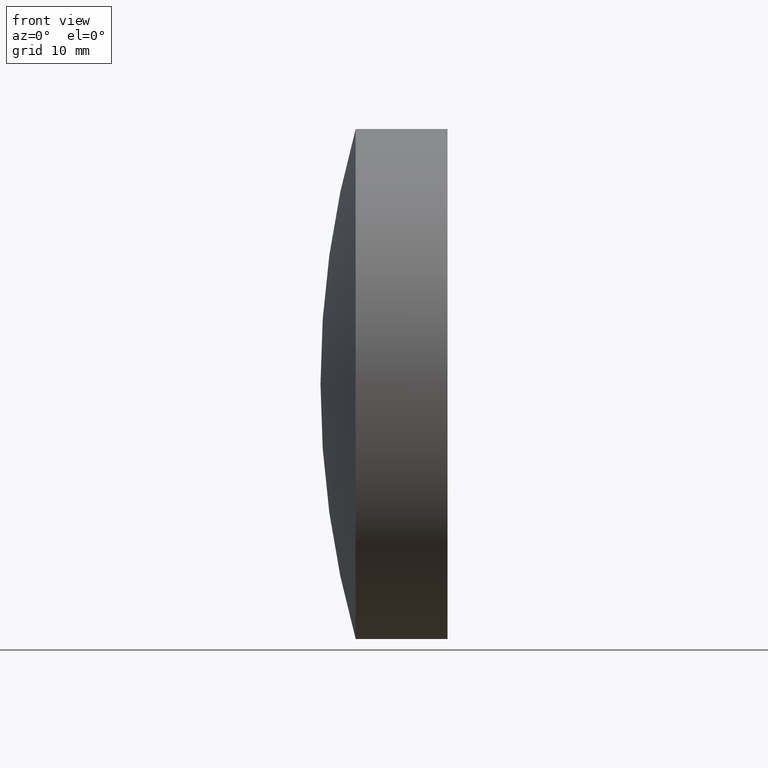
[diagram: clean part render]
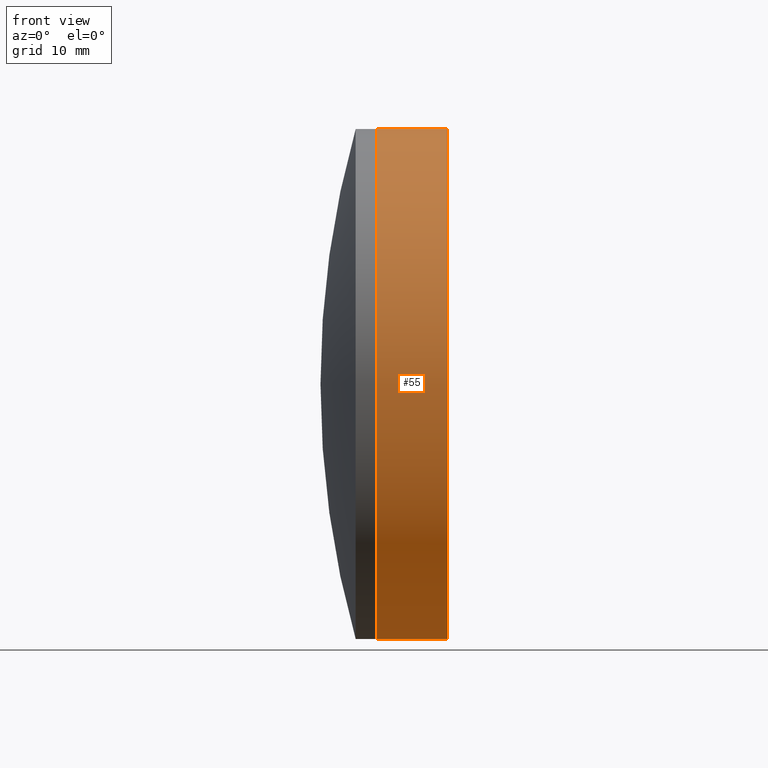
[diagram: same view with one face highlighted and labeled with its STEP entity id]
A machine part, front view. The second image highlights one B-rep face of the part: STEP entity #55.
In plain terms, the highlighted cylindrical surface (partial cylindrical patch) has radius 25.4 mm, axis along (-1, -0, -0).
Its self-contained STEP definition (entity closure, byte-faithful):
#2 = CARTESIAN_POINT ( 'NONE',  ( -0.5519199926577972300, 0.0000000000000000000, 0.0000000000000000000 ) ) ;
#3 = DIRECTION ( 'NONE',  ( -1.000000000000000000, -0.0000000000000000000, -0.0000000000000000000 ) ) ;
#5 = EDGE_CURVE ( 'NONE', #150, #49, #96, .T. ) ;
#11 = DIRECTION ( 'NONE',  ( 0.0000000000000000000, 0.0000000000000000000, 1.000000000000000000 ) ) ;
#17 = AXIS2_PLACEMENT_3D ( 'NONE', #247, #230, #282 ) ;
#42 = DIRECTION ( 'NONE',  ( 0.0000000000000000000, 0.0000000000000000000, 1.000000000000000000 ) ) ;
#49 = VERTEX_POINT ( 'NONE', #152 ) ;
#52 = LINE ( 'NONE', #299, #119 ) ;
#55 = ADVANCED_FACE ( 'NONE', ( #233 ), #111, .T. ) ;
#79 = CARTESIAN_POINT ( 'NONE',  ( 153.6621801840200600, 0.0000000000000000000, -25.39999999999994200 ) ) ;
#90 = VERTEX_POINT ( 'NONE', #79 ) ;
#96 = CIRCLE ( 'NONE', #17, 25.39999999999991700 ) ;
#111 = CYLINDRICAL_SURFACE ( 'NONE', #256, 25.39999999999991700 ) ;
#118 = CIRCLE ( 'NONE', #185, 25.39999999999991700 ) ;
#119 = VECTOR ( 'NONE', #180, 1000.000000000000000 ) ;
#122 = CARTESIAN_POINT ( 'NONE',  ( 160.7269477456904700, 0.0000000000000000000, -25.39999999999988100 ) ) ;
#124 = ORIENTED_EDGE ( 'NONE', *, *, #217, .T. ) ;
#127 = ORIENTED_EDGE ( 'NONE', *, *, #176, .F. ) ;
#136 = VERTEX_POINT ( 'NONE', #213 ) ;
#150 = VERTEX_POINT ( 'NONE', #122 ) ;
#152 = CARTESIAN_POINT ( 'NONE',  ( 160.7269477456904700, -3.110602869834261900E-015, 25.39999999999988100 ) ) ;
#154 = ORIENTED_EDGE ( 'NONE', *, *, #188, .F. ) ;
#175 = CARTESIAN_POINT ( 'NONE',  ( 153.6621801840200600, 0.0000000000000000000, 0.0000000000000000000 ) ) ;
#176 = EDGE_CURVE ( 'NONE', #150, #90, #200, .T. ) ;
#180 = DIRECTION ( 'NONE',  ( -1.000000000000000000, -0.0000000000000000000, -0.0000000000000000000 ) ) ;
#185 = AXIS2_PLACEMENT_3D ( 'NONE', #175, #266, #42 ) ;
#188 = EDGE_CURVE ( 'NONE', #90, #136, #118, .T. ) ;
#200 = LINE ( 'NONE', #309, #225 ) ;
#203 = ORIENTED_EDGE ( 'NONE', *, *, #5, .T. ) ;
#213 = CARTESIAN_POINT ( 'NONE',  ( 153.6621801840200600, -3.110602869834270200E-015, 25.39999999999997700 ) ) ;
#217 = EDGE_CURVE ( 'NONE', #49, #136, #52, .T. ) ;
#225 = VECTOR ( 'NONE', #279, 1000.000000000000000 ) ;
#230 = DIRECTION ( 'NONE',  ( -1.000000000000000000, -0.0000000000000000000, -0.0000000000000000000 ) ) ;
#233 = FACE_OUTER_BOUND ( 'NONE', #292, .T. ) ;
#247 = CARTESIAN_POINT ( 'NONE',  ( 160.7269477456904700, 0.0000000000000000000, 0.0000000000000000000 ) ) ;
#256 = AXIS2_PLACEMENT_3D ( 'NONE', #2, #3, #11 ) ;
#266 = DIRECTION ( 'NONE',  ( -1.000000000000000000, -0.0000000000000000000, -0.0000000000000000000 ) ) ;
#279 = DIRECTION ( 'NONE',  ( -1.000000000000000000, -0.0000000000000000000, -0.0000000000000000000 ) ) ;
#282 = DIRECTION ( 'NONE',  ( 0.0000000000000000000, 0.0000000000000000000, 1.000000000000000000 ) ) ;
#292 = EDGE_LOOP ( 'NONE', ( #127, #203, #124, #154 ) ) ;
#299 = CARTESIAN_POINT ( 'NONE',  ( -0.5519199926577972300, 0.0000000000000000000, 25.39999999999991700 ) ) ;
#309 = CARTESIAN_POINT ( 'NONE',  ( -0.5519199926577972300, 3.110602869834266600E-015, -25.39999999999991700 ) ) ;